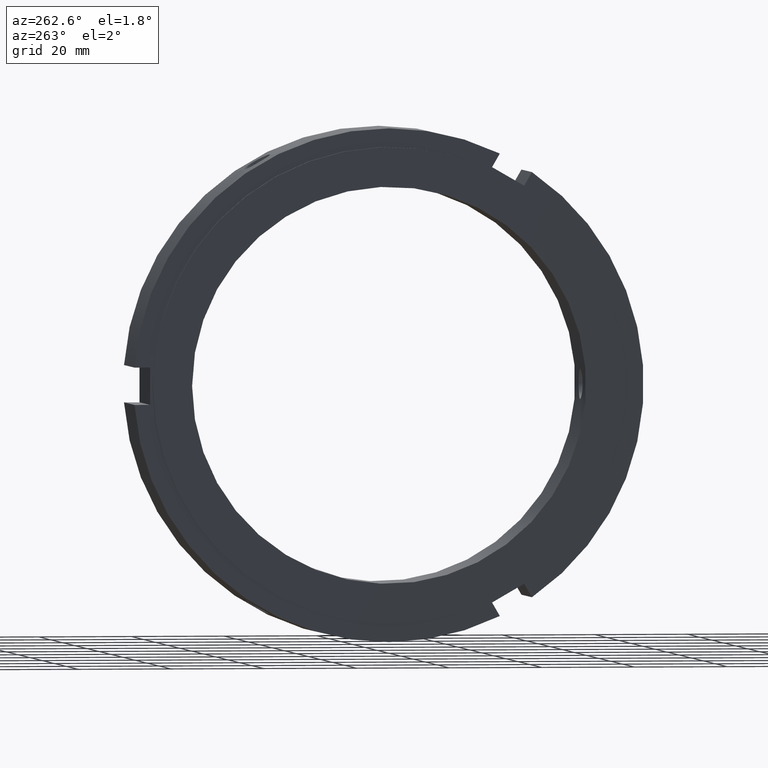
[diagram: clean part render]
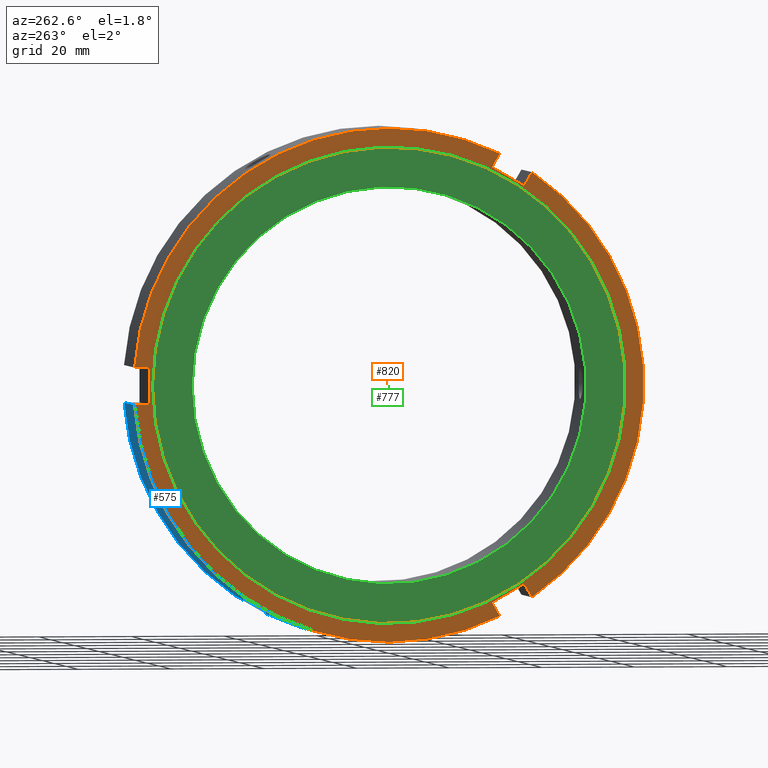
[diagram: same view with three faces highlighted in distinct colors, each labeled with its STEP entity id]
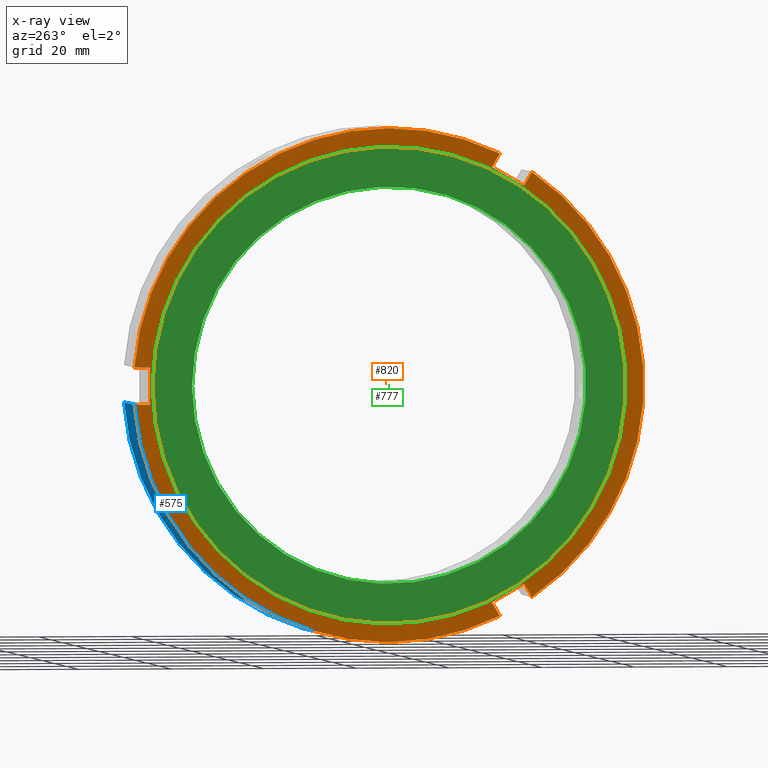
[diagram: x-ray of the same camera — body ghosted, the three highlighted faces saturated]
A machine part, auxiliary view with three faces highlighted in distinct colors.
The next image is the same camera in x-ray (body ghosted, the three faces saturated) — at least one of them is partly hidden behind the body in this view.
Their STEP definitions:

[orange] entity #820 — the highlighted planar face has unit normal (-1, 0, 0).
#73=CARTESIAN_POINT('',(0.499999999999985,-29.214101615137793,-42.600308294898582));
#74=VERTEX_POINT('',#73);
#75=CARTESIAN_POINT('',(0.499999999999985,-30.891277918942741,-45.505262866339336));
#76=VERTEX_POINT('',#75);
#77=CARTESIAN_POINT('',(0.499999999999984,-29.214101615137810,-42.600308294898596));
#78=DIRECTION('',(0.0,-0.500000000000002,-0.866025403784438));
#79=VECTOR('',#78,3.354352607609894);
#80=LINE('',#77,#79);
#81=EDGE_CURVE('',#74,#76,#80,.T.);
#113=CARTESIAN_POINT('',(0.499999999999985,-23.963074688667231,-49.505262866339343));
#114=VERTEX_POINT('',#113);
#115=CARTESIAN_POINT('',(0.499999999999985,-22.285898384862275,-46.600308294898582));
#116=VERTEX_POINT('',#115);
#117=CARTESIAN_POINT('',(0.499999999999984,-23.963074688667245,-49.505262866339351));
#118=DIRECTION('',(0.0,0.500000000000000,0.866025403784439));
#119=VECTOR('',#118,3.354352607609914);
#120=LINE('',#117,#119);
#121=EDGE_CURVE('',#114,#116,#120,.T.);
#153=CARTESIAN_POINT('',(0.499999999999984,-22.285898384862289,-46.600308294898589));
#154=DIRECTION('',(0.0,-0.866025403784438,0.500000000000001));
#155=VECTOR('',#154,8.000000000000005);
#156=LINE('',#153,#155);
#157=EDGE_CURVE('',#116,#74,#156,.T.);
#263=CARTESIAN_POINT('',(0.499999999999985,-22.285898384862239,46.600308294898610));
#264=VERTEX_POINT('',#263);
#265=CARTESIAN_POINT('',(0.499999999999985,-23.963074688667195,49.505262866339365));
#266=VERTEX_POINT('',#265);
#267=CARTESIAN_POINT('',(0.499999999999986,-22.285898384862243,46.600308294898610));
#268=DIRECTION('',(0.0,-0.500000000000000,0.866025403784439));
#269=VECTOR('',#268,3.354352607609906);
#270=LINE('',#267,#269);
#271=EDGE_CURVE('',#264,#266,#270,.T.);
#303=CARTESIAN_POINT('',(0.499999999999985,-30.891277918942702,45.505262866339358));
#304=VERTEX_POINT('',#303);
#305=CARTESIAN_POINT('',(0.499999999999985,-29.214101615137746,42.600308294898603));
#306=VERTEX_POINT('',#305);
#307=CARTESIAN_POINT('',(0.499999999999986,-30.891277918942706,45.505262866339372));
#308=DIRECTION('',(0.0,0.500000000000000,-0.866025403784439));
#309=VECTOR('',#308,3.354352607609914);
#310=LINE('',#307,#309);
#311=EDGE_CURVE('',#304,#306,#310,.T.);
#343=CARTESIAN_POINT('',(0.499999999999986,-29.214101615137750,42.600308294898610));
#344=DIRECTION('',(0.0,0.866025403784439,0.500000000000000));
#345=VECTOR('',#344,7.999999999999998);
#346=LINE('',#343,#345);
#347=EDGE_CURVE('',#306,#264,#346,.T.);
#527=CARTESIAN_POINT('',(0.499999999999985,54.854352607609911,3.999999999999997));
#528=VERTEX_POINT('',#527);
#535=CARTESIAN_POINT('',(0.499999999999985,0.0,0.0));
#536=DIRECTION('',(1.0,0.0,0.0));
#537=DIRECTION('',(0.0,1.0,0.0));
#538=AXIS2_PLACEMENT_3D('',#535,#536,#537);
#539=CIRCLE('',#538,55.0);
#540=EDGE_CURVE('',#528,#266,#539,.T.);
#554=CARTESIAN_POINT('',(0.499999999999985,54.854352607609911,-3.999999999999997));
#555=VERTEX_POINT('',#554);
#556=CARTESIAN_POINT('',(0.499999999999985,0.0,0.0));
#557=DIRECTION('',(1.0,0.0,0.0));
#558=DIRECTION('',(0.0,1.0,0.0));
#559=AXIS2_PLACEMENT_3D('',#556,#557,#558);
#560=CIRCLE('',#559,55.0);
#561=EDGE_CURVE('',#114,#555,#560,.T.);
#584=CARTESIAN_POINT('',(0.499999999999985,0.0,0.0));
#585=DIRECTION('',(1.0,0.0,0.0));
#586=DIRECTION('',(0.0,1.0,0.0));
#587=AXIS2_PLACEMENT_3D('',#584,#585,#586);
#588=CIRCLE('',#587,55.0);
#589=EDGE_CURVE('',#304,#76,#588,.T.);
#690=CARTESIAN_POINT('',(0.499999999999985,51.500000000000000,-3.999999999999997));
#691=VERTEX_POINT('',#690);
#692=CARTESIAN_POINT('',(0.499999999999985,51.500000000000007,-3.999999999999997));
#693=DIRECTION('',(0.0,1.0,0.0));
#694=VECTOR('',#693,3.354352607609904);
#695=LINE('',#692,#694);
#696=EDGE_CURVE('',#691,#555,#695,.T.);
#714=CARTESIAN_POINT('',(0.499999999999985,51.500000000000000,3.999999999999997));
#715=VERTEX_POINT('',#714);
#716=CARTESIAN_POINT('',(0.499999999999985,54.854352607609911,3.999999999999997));
#717=DIRECTION('',(0.0,-1.0,0.0));
#718=VECTOR('',#717,3.354352607609911);
#719=LINE('',#716,#718);
#720=EDGE_CURVE('',#528,#715,#719,.T.);
#738=CARTESIAN_POINT('',(0.499999999999985,51.500000000000000,3.999999999999997));
#739=DIRECTION('',(0.0,0.0,-1.0));
#740=VECTOR('',#739,7.999999999999995);
#741=LINE('',#738,#740);
#742=EDGE_CURVE('',#715,#691,#741,.T.);
#783=CARTESIAN_POINT('',(0.499999999999985,51.000000000000007,0.0));
#784=VERTEX_POINT('',#783);
#785=CARTESIAN_POINT('',(0.499999999999985,0.0,0.0));
#786=DIRECTION('',(1.0,0.0,0.0));
#787=DIRECTION('',(0.0,1.0,0.0));
#788=AXIS2_PLACEMENT_3D('',#785,#786,#787);
#789=CIRCLE('',#788,51.000000000000007);
#790=EDGE_CURVE('',#784,#784,#789,.T.);
#798=CARTESIAN_POINT('',(0.499999999999985,53.000000000000007,0.0));
#799=DIRECTION('',(-1.0,0.0,0.0));
#800=DIRECTION('',(0.0,0.0,1.0));
#801=AXIS2_PLACEMENT_3D('',#798,#799,#800);
#802=PLANE('',#801);
#803=ORIENTED_EDGE('',*,*,#81,.T.);
#804=ORIENTED_EDGE('',*,*,#589,.F.);
#805=ORIENTED_EDGE('',*,*,#311,.T.);
#806=ORIENTED_EDGE('',*,*,#347,.T.);
#807=ORIENTED_EDGE('',*,*,#271,.T.);
#808=ORIENTED_EDGE('',*,*,#540,.F.);
#809=ORIENTED_EDGE('',*,*,#720,.T.);
#810=ORIENTED_EDGE('',*,*,#742,.T.);
#811=ORIENTED_EDGE('',*,*,#696,.T.);
#812=ORIENTED_EDGE('',*,*,#561,.F.);
#813=ORIENTED_EDGE('',*,*,#121,.T.);
#814=ORIENTED_EDGE('',*,*,#157,.T.);
#815=EDGE_LOOP('',(#803,#804,#805,#806,#807,#808,#809,#810,#811,#812,#813,#814));
#816=FACE_OUTER_BOUND('',#815,.T.);
#817=ORIENTED_EDGE('',*,*,#790,.T.);
#818=EDGE_LOOP('',(#817));
#819=FACE_BOUND('',#818,.T.);
#820=ADVANCED_FACE('',(#816,#819),#802,.T.);

[blue] entity #575 — the highlighted cylindrical surface (partial cylindrical patch) has radius 55 mm, axis along (1, 0, 0).
#113=CARTESIAN_POINT('',(0.499999999999985,-23.963074688667231,-49.505262866339343));
#114=VERTEX_POINT('',#113);
#123=CARTESIAN_POINT('',(17.999999999999989,-23.963074688667231,-49.505262866339343));
#124=VERTEX_POINT('',#123);
#125=CARTESIAN_POINT('',(17.999999999999989,-23.963074688667231,-49.505262866339336));
#126=DIRECTION('',(-1.0,0.0,0.0));
#127=VECTOR('',#126,17.500000000000007);
#128=LINE('',#125,#127);
#129=EDGE_CURVE('',#124,#114,#128,.T.);
#365=CARTESIAN_POINT('',(8.999999999999989,24.571511143806106,-49.206105719817053));
#366=VERTEX_POINT('',#365);
#367=CARTESIAN_POINT('',(8.999999999999989,24.571511143806099,-49.206105719817053));
#368=CARTESIAN_POINT('',(9.417415254868969,24.571511143806099,-49.206105719817053));
#369=CARTESIAN_POINT('',(9.862583720516916,24.646398731649249,-49.168932110164420));
#370=CARTESIAN_POINT('',(10.681395329114469,24.949643726817939,-49.015753928229188));
#371=CARTESIAN_POINT('',(11.055047103038254,25.177859496885073,-48.899515217452972));
#372=CARTESIAN_POINT('',(11.645091538414086,25.701470357455069,-48.626346960603406));
#373=CARTESIAN_POINT('',(11.900851649529365,26.031778084300807,-48.451153058105128));
#374=CARTESIAN_POINT('',(12.240058692793204,26.750360802471469,-48.058151231882803));
#375=CARTESIAN_POINT('',(12.323499999999989,27.138507948437770,-47.840104741423481));
#376=CARTESIAN_POINT('',(12.323499999999989,27.861492051562205,-47.422689674864770));
#377=CARTESIAN_POINT('',(12.240058692793202,28.244399424489167,-47.195567631281186));
#378=CARTESIAN_POINT('',(11.900851649529358,28.944040348816706,-46.769757655736086));
#379=CARTESIAN_POINT('',(11.645091538414082,29.260916582391225,-46.571299724470521));
#380=CARTESIAN_POINT('',(11.055047103038254,29.759292662615458,-46.254423545944263));
#381=CARTESIAN_POINT('',(10.681395329114467,29.974066224084360,-46.114902246909999));
#382=CARTESIAN_POINT('',(9.862583720516913,30.258344918530128,-45.928873468491034));
#383=CARTESIAN_POINT('',(9.417415254868969,30.327982002761274,-45.882605719817050));
#384=CARTESIAN_POINT('',(8.582584745131010,30.327982002761274,-45.882605719817050));
#385=CARTESIAN_POINT('',(8.137416279483063,30.258344918530128,-45.928873468491034));
#386=CARTESIAN_POINT('',(7.318604670885510,29.974066224084360,-46.114902246909999));
#387=CARTESIAN_POINT('',(6.944952896961725,29.759292662615458,-46.254423545944263));
#388=CARTESIAN_POINT('',(6.354908461585895,29.260916582391225,-46.571299724470521));
#389=CARTESIAN_POINT('',(6.099148350470623,28.944040348816706,-46.769757655736086));
#390=CARTESIAN_POINT('',(5.759941307206779,28.244399424489167,-47.195567631281186));
#391=CARTESIAN_POINT('',(5.676499999999990,27.861492051562205,-47.422689674864770));
#392=CARTESIAN_POINT('',(5.676499999999987,27.138507948437770,-47.840104741423481));
#393=CARTESIAN_POINT('',(5.759941307206775,26.750360802471469,-48.058151231882803));
#394=CARTESIAN_POINT('',(6.099148350470614,26.031778084300807,-48.451153058105128));
#395=CARTESIAN_POINT('',(6.354908461585895,25.701470357455069,-48.626346960603406));
#396=CARTESIAN_POINT('',(6.944952896961727,25.177859496885073,-48.899515217452972));
#397=CARTESIAN_POINT('',(7.318604670885510,24.949643726817939,-49.015753928229195));
#398=CARTESIAN_POINT('',(8.137416279483063,24.646398731649249,-49.168932110164420));
#399=CARTESIAN_POINT('',(8.582584745131008,24.571511143806099,-49.206105719817053));
#400=CARTESIAN_POINT('',(8.999999999999989,24.571511143806099,-49.206105719817053));
#401=B_SPLINE_CURVE_WITH_KNOTS('',3,(#367,#368,#369,#370,#371,#372,#373,#374,#375,#376,#377,#378,#379,#380,#381,#382,#383,#384,#385,#386,#387,#388,#389,#390,#391,#392,#393,#394,#395,#396,#397,#398,#399,#400),.UNSPECIFIED.,.T.,.U.,(4,2,2,2,2,2,2,2,2,2,2,2,2,2,2,2,4),(0.0,0.125224576460694,0.250449152921388,0.375673672889002,0.500898192856616,0.626122712824230,0.751347232791844,0.876571809252538,1.001796385713232,1.127020962173926,1.252245538634620,1.377470058602234,1.502694578569847,1.627919098537461,1.753143618505075,1.878368194965769,2.003592771426463),.UNSPECIFIED.);
#402=EDGE_CURVE('',#366,#366,#401,.T.);
#456=CARTESIAN_POINT('',(17.999999999999989,54.854352607609911,-3.999999999999997));
#457=VERTEX_POINT('',#456);
#458=CARTESIAN_POINT('',(17.999999999999989,0.0,0.0));
#459=DIRECTION('',(1.0,0.0,0.0));
#460=DIRECTION('',(0.0,1.0,0.0));
#461=AXIS2_PLACEMENT_3D('',#458,#459,#460);
#462=CIRCLE('',#461,55.0);
#463=EDGE_CURVE('',#124,#457,#462,.T.);
#548=CARTESIAN_POINT('',(9.249999999999988,0.0,0.0));
#549=DIRECTION('',(1.0,0.0,0.0));
#550=DIRECTION('',(0.0,1.0,0.0));
#551=AXIS2_PLACEMENT_3D('',#548,#549,#550);
#552=CYLINDRICAL_SURFACE('',#551,55.0);
#553=ORIENTED_EDGE('',*,*,#129,.T.);
#554=CARTESIAN_POINT('',(0.499999999999985,54.854352607609911,-3.999999999999997));
#555=VERTEX_POINT('',#554);
#556=CARTESIAN_POINT('',(0.499999999999985,0.0,0.0));
#557=DIRECTION('',(1.0,0.0,0.0));
#558=DIRECTION('',(0.0,1.0,0.0));
#559=AXIS2_PLACEMENT_3D('',#556,#557,#558);
#560=CIRCLE('',#559,55.0);
#561=EDGE_CURVE('',#114,#555,#560,.T.);
#562=ORIENTED_EDGE('',*,*,#561,.T.);
#563=CARTESIAN_POINT('',(0.499999999999984,54.854352607609911,-3.999999999999997));
#564=DIRECTION('',(1.0,0.0,0.0));
#565=VECTOR('',#564,17.500000000000007);
#566=LINE('',#563,#565);
#567=EDGE_CURVE('',#555,#457,#566,.T.);
#568=ORIENTED_EDGE('',*,*,#567,.T.);
#569=ORIENTED_EDGE('',*,*,#463,.F.);
#570=EDGE_LOOP('',(#553,#562,#568,#569));
#571=FACE_OUTER_BOUND('',#570,.T.);
#572=ORIENTED_EDGE('',*,*,#402,.T.);
#573=EDGE_LOOP('',(#572));
#574=FACE_BOUND('',#573,.T.);
#575=ADVANCED_FACE('',(#571,#574),#552,.T.);

[green] entity #777 — the highlighted planar face has unit normal (-1, 0, 0).
#750=CARTESIAN_POINT('',(-1.383047E-014,46.750000000000007,0.0));
#751=DIRECTION('',(-1.0,0.0,0.0));
#752=DIRECTION('',(0.0,0.0,1.0));
#753=AXIS2_PLACEMENT_3D('',#750,#751,#752);
#754=PLANE('',#753);
#755=CARTESIAN_POINT('',(-1.554312E-014,51.000000000000007,0.0));
#756=VERTEX_POINT('',#755);
#757=CARTESIAN_POINT('',(-1.554312E-014,0.0,0.0));
#758=DIRECTION('',(1.0,0.0,0.0));
#759=DIRECTION('',(0.0,1.0,0.0));
#760=AXIS2_PLACEMENT_3D('',#757,#758,#759);
#761=CIRCLE('',#760,51.000000000000007);
#762=EDGE_CURVE('',#756,#756,#761,.T.);
#763=ORIENTED_EDGE('',*,*,#762,.F.);
#764=EDGE_LOOP('',(#763));
#765=FACE_OUTER_BOUND('',#764,.T.);
#766=CARTESIAN_POINT('',(-1.211782E-014,42.500000000000000,0.0));
#767=VERTEX_POINT('',#766);
#768=CARTESIAN_POINT('',(-1.211704E-014,0.0,0.0));
#769=DIRECTION('',(1.0,0.0,0.0));
#770=DIRECTION('',(0.0,1.0,0.0));
#771=AXIS2_PLACEMENT_3D('',#768,#769,#770);
#772=CIRCLE('',#771,42.500000000000000);
#773=EDGE_CURVE('',#767,#767,#772,.T.);
#774=ORIENTED_EDGE('',*,*,#773,.T.);
#775=EDGE_LOOP('',(#774));
#776=FACE_BOUND('',#775,.T.);
#777=ADVANCED_FACE('',(#765,#776),#754,.T.);